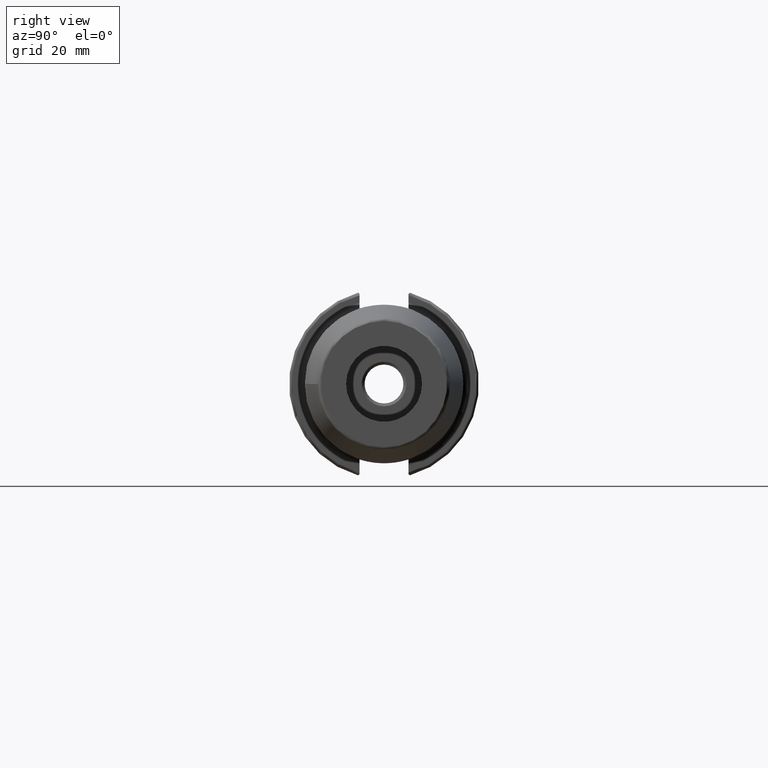
[diagram: clean part render]
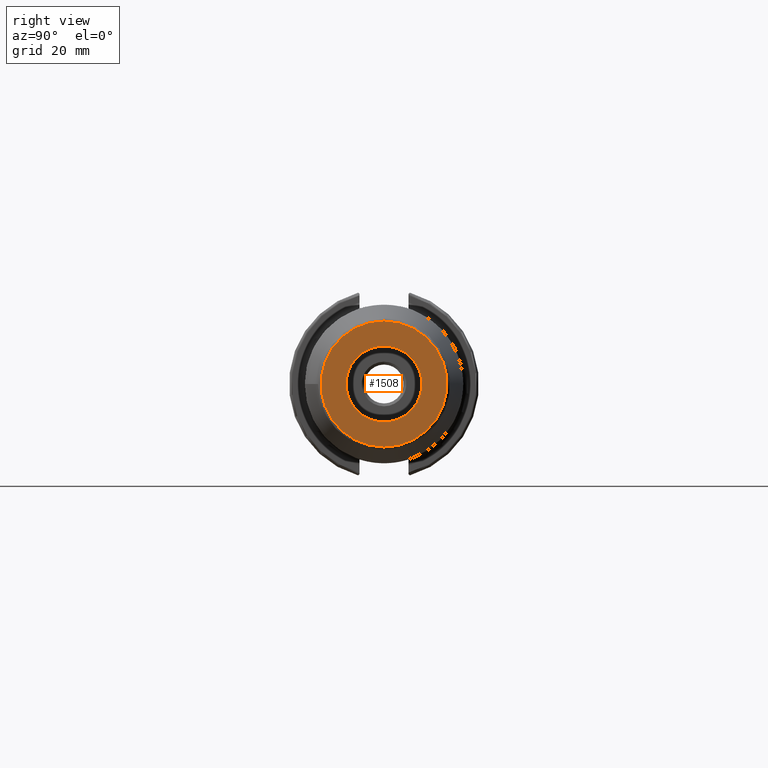
[diagram: same view with one face highlighted and labeled with its STEP entity id]
A machine part, right view. The second image highlights one B-rep face of the part: STEP entity #1508.
In plain terms, the highlighted planar face has unit normal (1, 0, 0).
Its self-contained STEP definition (entity closure, byte-faithful):
#49=FACE_BOUND('',#214,.T.);
#64=PLANE('',#1629);
#126=FACE_OUTER_BOUND('',#213,.T.);
#213=EDGE_LOOP('',(#1033));
#214=EDGE_LOOP('',(#1034));
#316=CIRCLE('',#1624,21.0756095083418);
#320=CIRCLE('',#1630,12.7);
#617=VERTEX_POINT('',#2353);
#620=VERTEX_POINT('',#2363);
#779=EDGE_CURVE('',#617,#617,#316,.T.);
#784=EDGE_CURVE('',#620,#620,#320,.T.);
#1033=ORIENTED_EDGE('',*,*,#779,.F.);
#1034=ORIENTED_EDGE('',*,*,#784,.F.);
#1508=ADVANCED_FACE('',(#126,#49),#64,.T.);
#1624=AXIS2_PLACEMENT_3D('',#2354,#1826,#1827);
#1629=AXIS2_PLACEMENT_3D('',#2362,#1837,#1838);
#1630=AXIS2_PLACEMENT_3D('',#2364,#1839,#1840);
#1826=DIRECTION('center_axis',(-1.,0.,0.));
#1827=DIRECTION('ref_axis',(0.,-1.,1.83697019872103E-16));
#1837=DIRECTION('center_axis',(1.,0.,0.));
#1838=DIRECTION('ref_axis',(0.,0.,-1.));
#1839=DIRECTION('center_axis',(1.,0.,0.));
#1840=DIRECTION('ref_axis',(0.,0.,-1.));
#2353=CARTESIAN_POINT('',(160.,-2.58101777244703E-15,21.0756095083418));
#2354=CARTESIAN_POINT('Origin',(160.,0.,0.));
#2362=CARTESIAN_POINT('Origin',(160.,12.7,0.));
#2363=CARTESIAN_POINT('',(160.,-12.7,-1.55530143491714E-15));
#2364=CARTESIAN_POINT('Origin',(160.,0.,0.));